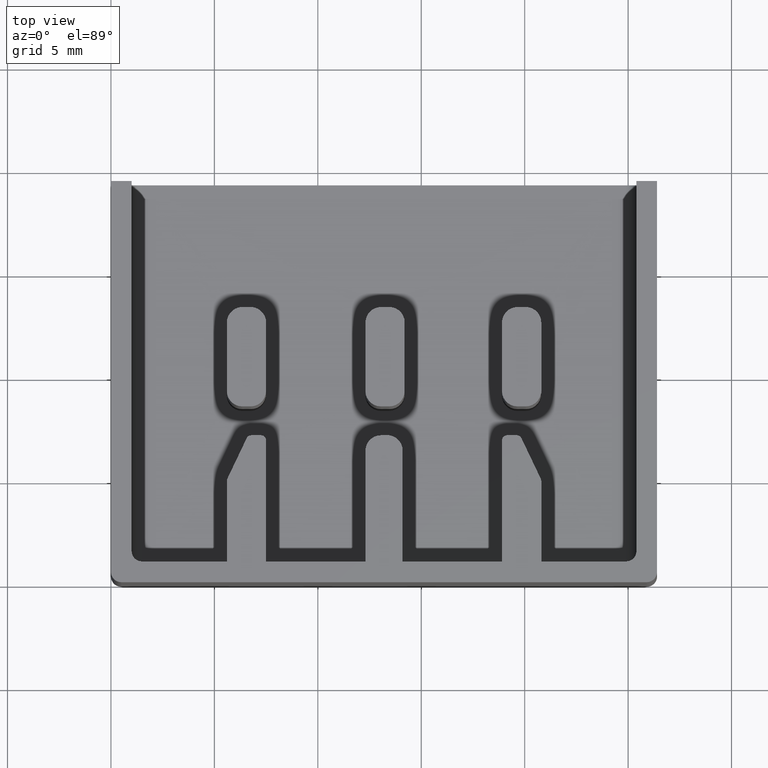
[diagram: clean part render]
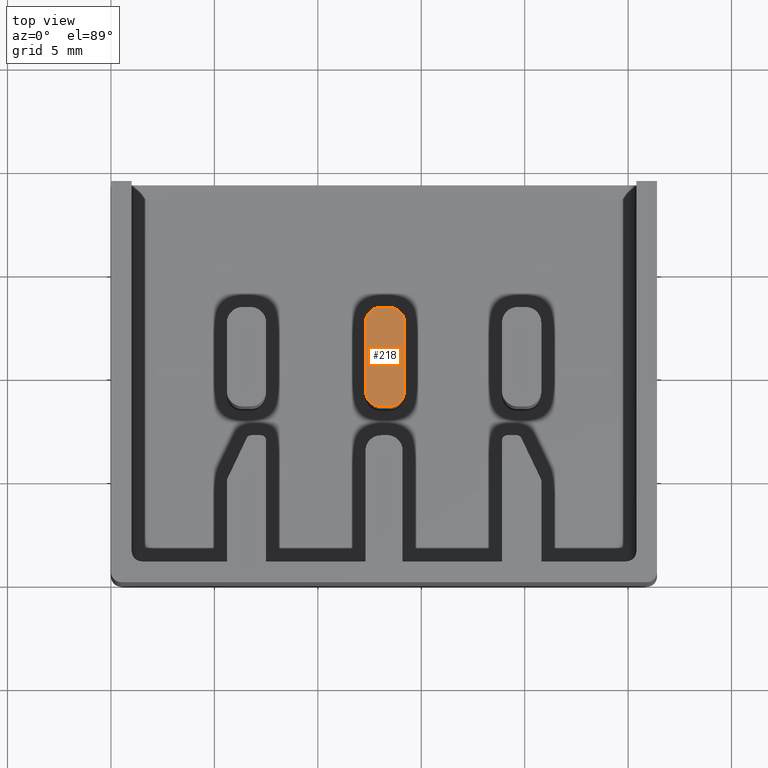
[diagram: same view with one face highlighted and labeled with its STEP entity id]
A machine part, top view. The second image highlights one B-rep face of the part: STEP entity #218.
In plain terms, the highlighted planar face has unit normal (0, 0, -1).
Its self-contained STEP definition (entity closure, byte-faithful):
#58 = EDGE_CURVE ( 'NONE', #847, #826, #340, .T. ) ;
#62 = EDGE_CURVE ( 'NONE', #824, #825, #1490, .T. ) ;
#136 = EDGE_CURVE ( 'NONE', #835, #847, #664, .T. ) ;
#153 = EDGE_CURVE ( 'NONE', #788, #832, #709, .T. ) ;
#158 = EDGE_CURVE ( 'NONE', #832, #824, #450, .T. ) ;
#171 = EDGE_CURVE ( 'NONE', #825, #835, #541, .T. ) ;
#173 = EDGE_CURVE ( 'NONE', #790, #788, #490, .T. ) ;
#180 = EDGE_CURVE ( 'NONE', #826, #790, #2183, .T. ) ;
#218 = ADVANCED_FACE ( 'NONE', ( #1781 ), #1803, .F. ) ;
#340 = CIRCLE ( 'NONE', #344, 0.7499999999999850100 ) ;
#344 = AXIS2_PLACEMENT_3D ( 'NONE', #1486, #1504, #1489 ) ;
#354 = VECTOR ( 'NONE', #1487, 1000.000000000000000 ) ;
#436 = VECTOR ( 'NONE', #723, 1000.000000000000000 ) ;
#450 = CIRCLE ( 'NONE', #451, 0.7500000000000145400 ) ;
#451 = AXIS2_PLACEMENT_3D ( 'NONE', #2166, #2160, #2132 ) ;
#458 = VECTOR ( 'NONE', #688, 1000.000000000000000 ) ;
#480 = VECTOR ( 'NONE', #2219, 1000.000000000000000 ) ;
#490 = CIRCLE ( 'NONE', #526, 0.7499999999999867900 ) ;
#496 = AXIS2_PLACEMENT_3D ( 'NONE', #2159, #2138, #2171 ) ;
#526 = AXIS2_PLACEMENT_3D ( 'NONE', #2172, #2207, #2215 ) ;
#541 = CIRCLE ( 'NONE', #496, 0.7500000000000127700 ) ;
#582 = AXIS2_PLACEMENT_3D ( 'NONE', #1769, #1782, #1765 ) ;
#651 = CARTESIAN_POINT ( 'NONE',  ( 14.20000000000001200, 9.249999999999953800, 13.30000000000000100 ) ) ;
#664 = LINE ( 'NONE', #651, #458 ) ;
#688 = DIRECTION ( 'NONE',  ( -2.943773171354508900E-014, -1.000000000000000000, 0.0000000000000000000 ) ) ;
#709 = LINE ( 'NONE', #711, #436 ) ;
#711 = CARTESIAN_POINT ( 'NONE',  ( 12.29999999999994400, 12.55000000000003400, 13.30000000000000100 ) ) ;
#723 = DIRECTION ( 'NONE',  ( 0.0000000000000000000, 1.000000000000000000, 0.0000000000000000000 ) ) ;
#788 = VERTEX_POINT ( 'NONE', #2022 ) ;
#790 = VERTEX_POINT ( 'NONE', #2018 ) ;
#824 = VERTEX_POINT ( 'NONE', #2025 ) ;
#825 = VERTEX_POINT ( 'NONE', #2054 ) ;
#826 = VERTEX_POINT ( 'NONE', #2044 ) ;
#832 = VERTEX_POINT ( 'NONE', #2059 ) ;
#835 = VERTEX_POINT ( 'NONE', #2063 ) ;
#847 = VERTEX_POINT ( 'NONE', #2062 ) ;
#1045 = ORIENTED_EDGE ( 'NONE', *, *, #171, .F. ) ;
#1046 = ORIENTED_EDGE ( 'NONE', *, *, #136, .F. ) ;
#1049 = ORIENTED_EDGE ( 'NONE', *, *, #153, .F. ) ;
#1065 = ORIENTED_EDGE ( 'NONE', *, *, #58, .F. ) ;
#1075 = ORIENTED_EDGE ( 'NONE', *, *, #62, .F. ) ;
#1091 = ORIENTED_EDGE ( 'NONE', *, *, #173, .F. ) ;
#1129 = ORIENTED_EDGE ( 'NONE', *, *, #158, .F. ) ;
#1160 = ORIENTED_EDGE ( 'NONE', *, *, #180, .F. ) ;
#1291 = EDGE_LOOP ( 'NONE', ( #1049, #1091, #1160, #1065, #1046, #1045, #1075, #1129 ) ) ;
#1486 = CARTESIAN_POINT ( 'NONE',  ( 13.45000000000001200, 9.249999999999953800, 13.30000000000000100 ) ) ;
#1487 = DIRECTION ( 'NONE',  ( 1.000000000000000000, 0.0000000000000000000, 0.0000000000000000000 ) ) ;
#1489 = DIRECTION ( 'NONE',  ( -1.000000000000000000, 0.0000000000000000000, 0.0000000000000000000 ) ) ;
#1490 = LINE ( 'NONE', #1508, #354 ) ;
#1504 = DIRECTION ( 'NONE',  ( 0.0000000000000000000, 0.0000000000000000000, -1.000000000000000000 ) ) ;
#1508 = CARTESIAN_POINT ( 'NONE',  ( 13.45000000000006900, 13.30000000000006300, 13.30000000000000100 ) ) ;
#1765 = DIRECTION ( 'NONE',  ( -1.000000000000000000, 0.0000000000000000000, -0.0000000000000000000 ) ) ;
#1769 = CARTESIAN_POINT ( 'NONE',  ( 0.0000000000000000000, 19.39999999999999900, 13.30000000000000100 ) ) ;
#1781 = FACE_OUTER_BOUND ( 'NONE', #1291, .T. ) ;
#1782 = DIRECTION ( 'NONE',  ( 0.0000000000000000000, 0.0000000000000000000, -1.000000000000000000 ) ) ;
#1803 = PLANE ( 'NONE',  #582 ) ;
#2018 = CARTESIAN_POINT ( 'NONE',  ( 13.05000000000000100, 8.499999999999982200, 13.30000000000000100 ) ) ;
#2022 = CARTESIAN_POINT ( 'NONE',  ( 12.29999999999995800, 9.249999999999953800, 13.30000000000000100 ) ) ;
#2025 = CARTESIAN_POINT ( 'NONE',  ( 13.04999999999997200, 13.30000000000006300, 13.30000000000000100 ) ) ;
#2044 = CARTESIAN_POINT ( 'NONE',  ( 13.44999999999998500, 8.499999999999969800, 13.30000000000000100 ) ) ;
#2054 = CARTESIAN_POINT ( 'NONE',  ( 13.45000000000006900, 13.30000000000004900, 13.30000000000000100 ) ) ;
#2059 = CARTESIAN_POINT ( 'NONE',  ( 12.29999999999994400, 12.55000000000003400, 13.30000000000000100 ) ) ;
#2062 = CARTESIAN_POINT ( 'NONE',  ( 14.20000000000001200, 9.249999999999953800, 13.30000000000000100 ) ) ;
#2063 = CARTESIAN_POINT ( 'NONE',  ( 14.20000000000012400, 12.55000000000003400, 13.30000000000000100 ) ) ;
#2132 = DIRECTION ( 'NONE',  ( -1.000000000000000000, 0.0000000000000000000, 0.0000000000000000000 ) ) ;
#2138 = DIRECTION ( 'NONE',  ( 0.0000000000000000000, 0.0000000000000000000, -1.000000000000000000 ) ) ;
#2159 = CARTESIAN_POINT ( 'NONE',  ( 13.45000000000010900, 12.55000000000003400, 13.30000000000000100 ) ) ;
#2160 = DIRECTION ( 'NONE',  ( 0.0000000000000000000, 0.0000000000000000000, -1.000000000000000000 ) ) ;
#2166 = CARTESIAN_POINT ( 'NONE',  ( 13.04999999999994600, 12.55000000000003400, 13.30000000000000100 ) ) ;
#2171 = DIRECTION ( 'NONE',  ( -1.000000000000000000, 0.0000000000000000000, 0.0000000000000000000 ) ) ;
#2172 = CARTESIAN_POINT ( 'NONE',  ( 13.04999999999994600, 9.249999999999953800, 13.30000000000000100 ) ) ;
#2183 = LINE ( 'NONE', #2217, #480 ) ;
#2207 = DIRECTION ( 'NONE',  ( 0.0000000000000000000, 0.0000000000000000000, -1.000000000000000000 ) ) ;
#2215 = DIRECTION ( 'NONE',  ( -1.000000000000000000, 0.0000000000000000000, 0.0000000000000000000 ) ) ;
#2217 = CARTESIAN_POINT ( 'NONE',  ( 13.44999999999998500, 8.499999999999982200, 13.30000000000000100 ) ) ;
#2219 = DIRECTION ( 'NONE',  ( -1.000000000000000000, 0.0000000000000000000, 0.0000000000000000000 ) ) ;